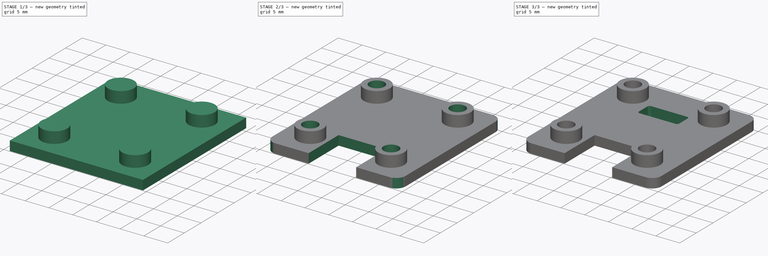
[diagram: build sequence overview — one tinted view per stage of 3, left to right]
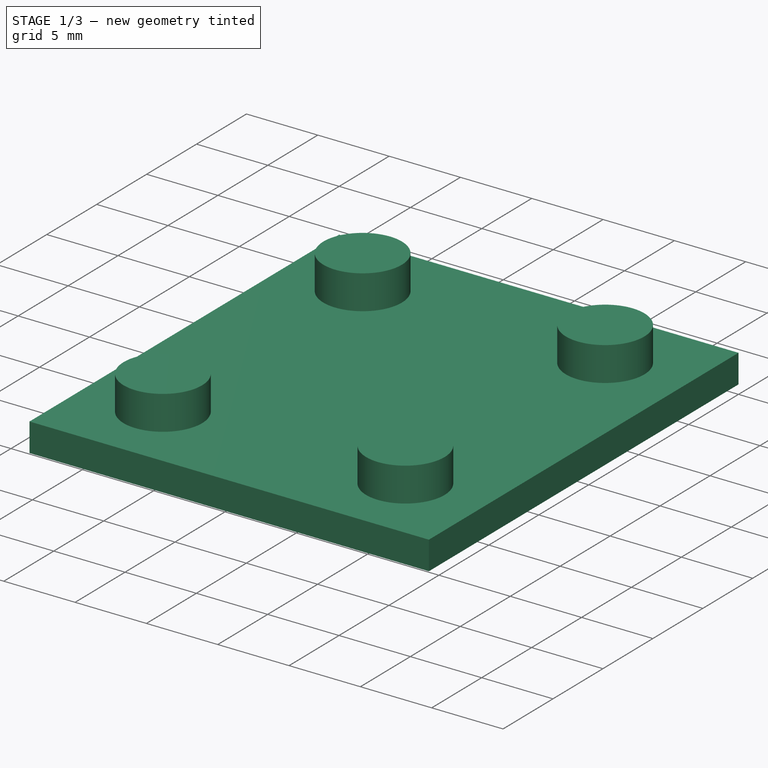
[diagram: stage 1 of 3 — iso view after this stage's code; geometry added in this stage tinted green]
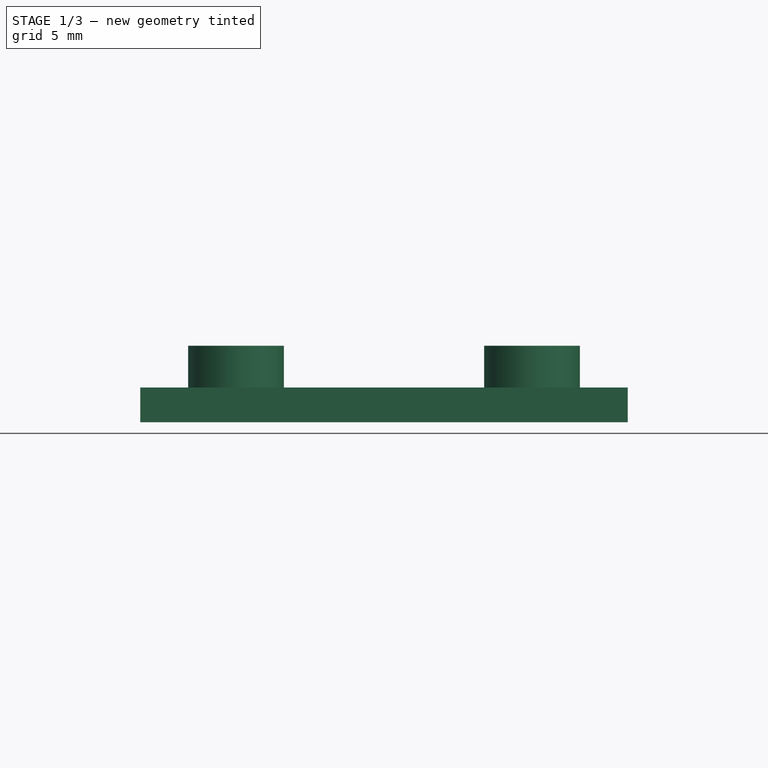
[diagram: stage 1 of 3 — front view after this stage's code; geometry added in this stage tinted green]
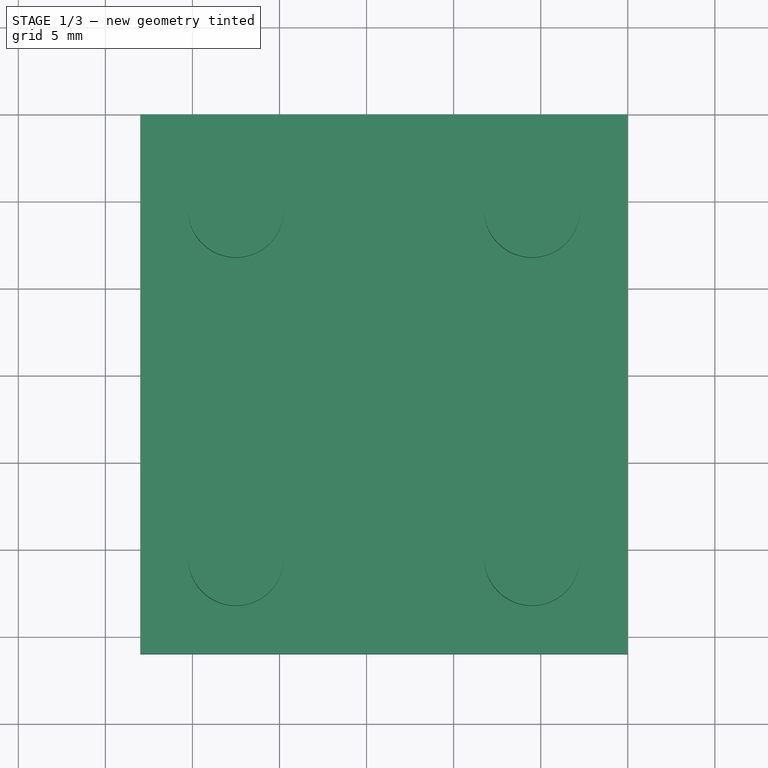
[diagram: stage 1 of 3 — top view after this stage's code; geometry added in this stage tinted green]
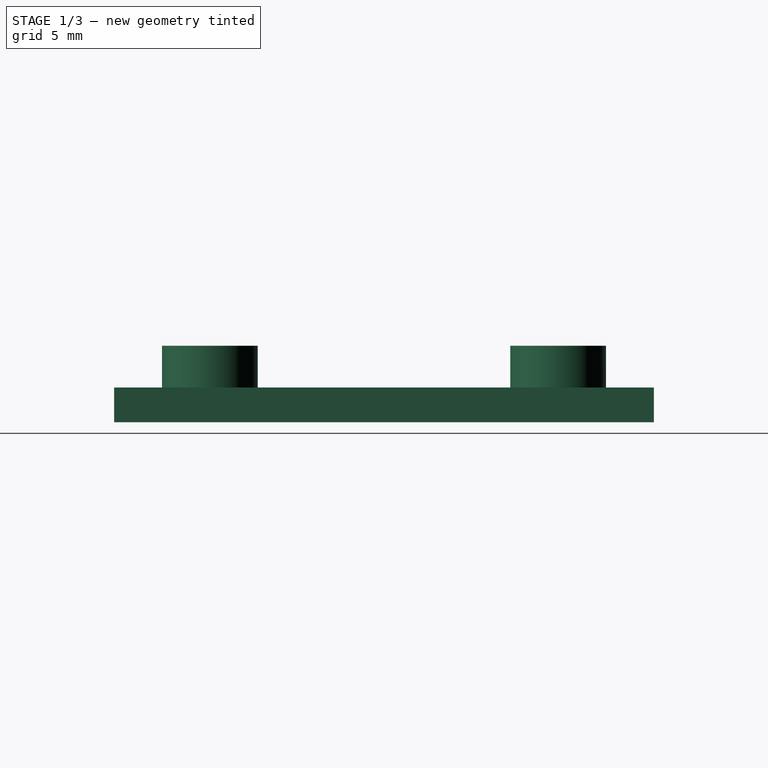
[diagram: stage 1 of 3 — right view after this stage's code; geometry added in this stage tinted green]
FCSTD DOCUMENT  (FreeCAD 1.0R39285 (Git))
Label: usb-stand-top
License: All rights reserved
LicenseURL: https://en.wikipedia.org/wiki/All_rights_reserved
objects: Sketcher::SketchObject×5, PartDesign::Pad×2, PartDesign::Pocket×2, PartDesign::Fillet×2, PartDesign::Hole×1, PartDesign::Body×1
note: 32 computed .brp shape members not serialized (recipe doc carries the construction recipe); baked Part::Feature solids carry a one-line shape summary decoded from their .brp

FEATURE [Sketcher::SketchObject] Sketch004
  ArcFitTolerance = 1e-06
  AttachmentSupport = -> [XY_Plane001]
  FullyConstrained = true
  MakeInternals = false
  MapMode = 5
  sketch-geometry (4):
    g0: LineSegment StartX=0 StartY=0 StartZ=0 EndX=-28 EndY=0 EndZ=0
    g1: LineSegment StartX=-28 StartY=0 StartZ=0 EndX=-28 EndY=-31 EndZ=0
    g2: LineSegment StartX=-28 StartY=-31 StartZ=0 EndX=0 EndY=-31 EndZ=0
    g3: LineSegment StartX=0 StartY=-31 StartZ=0 EndX=0 EndY=0 EndZ=0
  constraints (11):
    c: Coincident(g0,g1)
    c: Coincident(g1,g2)
    c: Coincident(g2,g3)
    c: Coincident(g3,g0)
    c: Horizontal(g0)
    c: Horizontal(g2)
    c: Vertical(g1)
    c: Vertical(g3)
    c: Distance(g1,g3) = 28
    c: Distance(g0,g2) = 31
    c: Coincident(g0,g-1)
FEATURE [PartDesign::Pad] Pad001
  Direction = (0,0,1)
  Length = 2
  Length2 = 10
  Profile = -> Sketch004
  ReferenceAxis = -> Sketch004 [N_Axis]
  Refine = true
  Suppressed = false
  Type = 0
FEATURE [Sketcher::SketchObject] Sketch005
  ArcFitTolerance = 1e-06
  AttachmentSupport = -> [Pad001]
  ExternalGeometry = -> [Pad001]
  FullyConstrained = true
  MakeInternals = false
  MapMode = 5
  Placement = pos=(0,0,2) rot=(0,0,1;0rad)
  sketch-geometry (4):
    g0: Circle CenterX=-22.5 CenterY=-5.5 CenterZ=0 NormalX=0 NormalY=0 NormalZ=1 AngleXU=0 Radius=2.75
    g1: Circle CenterX=-5.5 CenterY=-5.5 CenterZ=0 NormalX=0 NormalY=0 NormalZ=1 AngleXU=0 Radius=2.75
    g2: Circle CenterX=-22.5 CenterY=-25.5 CenterZ=0 NormalX=0 NormalY=0 NormalZ=1 AngleXU=0 Radius=2.75
    g3: Circle CenterX=-5.5 CenterY=-25.5 CenterZ=0 NormalX=0 NormalY=0 NormalZ=1 AngleXU=0 Radius=2.75
  constraints (12):
    c: Diameter(g0) = 5.5
    c: Diameter(g1) = 5.5
    c: Diameter(g2) = 5.5
    c: Diameter(g3) = 5.5
    c: Distance(g0,g-4) = 5.5
    c: Distance(g0,g-1) = 5.5
    c: Distance(g1,g-2) = 5.5
    c: Distance(g1,g-1) = 5.5
    c: Distance(g2,g-4) = 5.5
    c: Distance(g2,g-3) = 5.5
    c: Distance(g3,g-2) = 5.5
    c: Distance(g3,g-3) = 5.5
FEATURE [PartDesign::Pad] Pad002
  BaseFeature = -> Pad001
  Direction = (0,0,1)
  Length = 2.4
  Length2 = 10
  Profile = -> Sketch005
  ReferenceAxis = -> Sketch005 [N_Axis]
  Refine = true
  Suppressed = false
  Type = 0
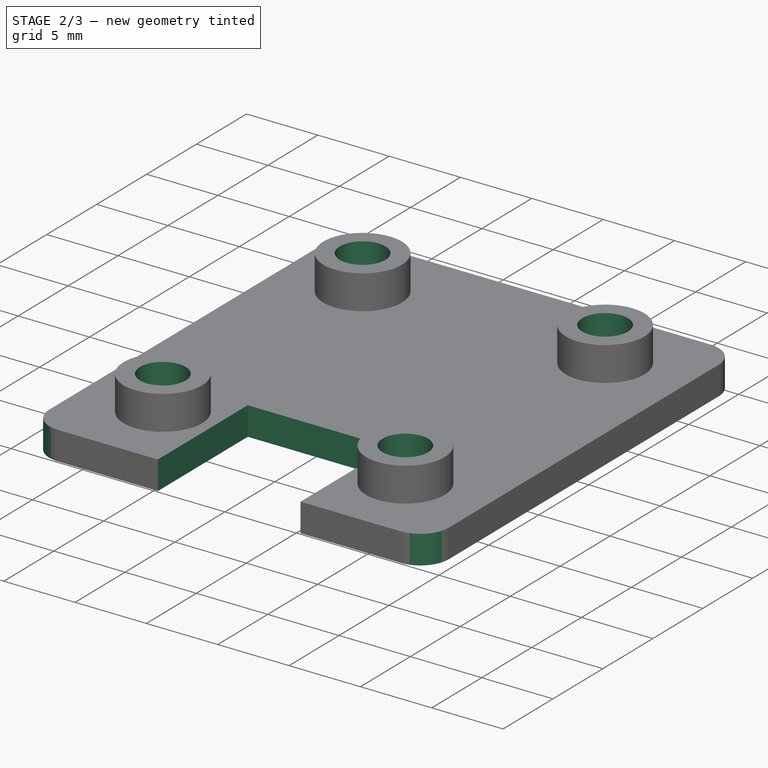
[diagram: stage 2 of 3 — iso view after this stage's code; geometry added in this stage tinted green]
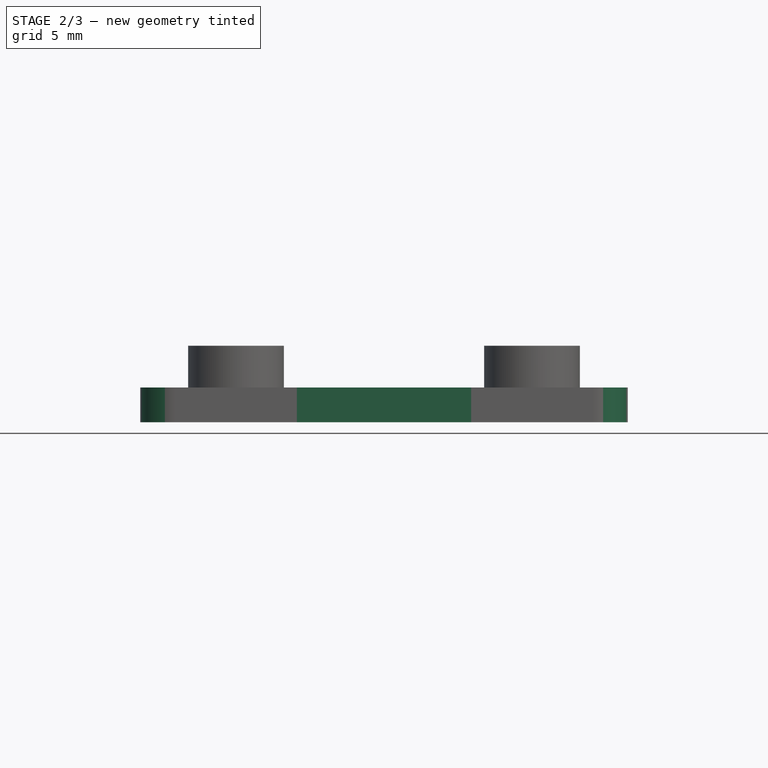
[diagram: stage 2 of 3 — front view after this stage's code; geometry added in this stage tinted green]
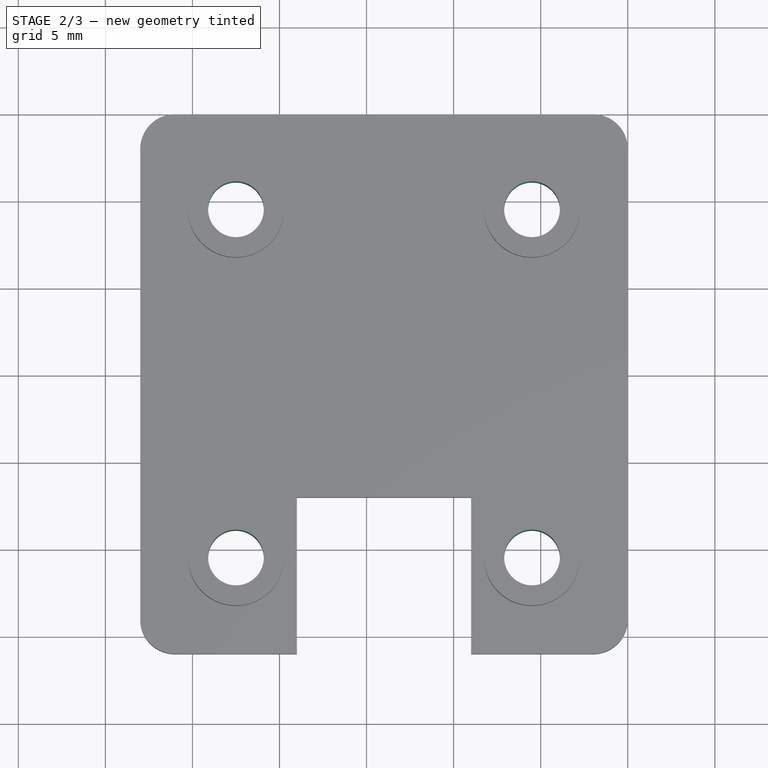
[diagram: stage 2 of 3 — top view after this stage's code; geometry added in this stage tinted green]
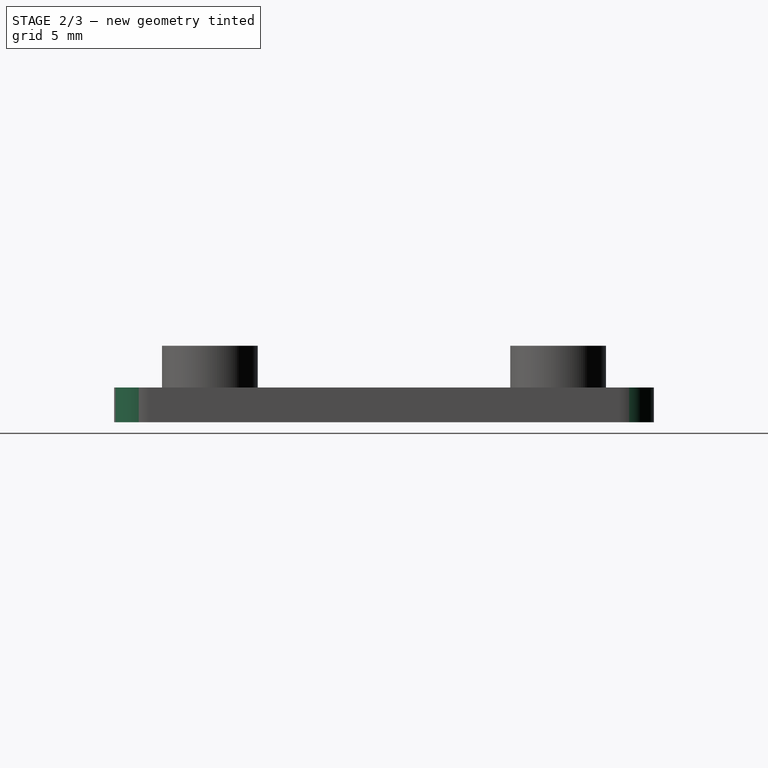
[diagram: stage 2 of 3 — right view after this stage's code; geometry added in this stage tinted green]
FEATURE [Sketcher::SketchObject] Sketch006
  ArcFitTolerance = 1e-06
  AttachmentSupport = -> [Pad002]
  ExternalGeometry = -> [Pad002]
  FullyConstrained = true
  MakeInternals = false
  MapMode = 5
  Placement = pos=(0,0,0) rot=(1,0,0;3.14159rad)
  sketch-geometry (4):
    g0: Circle CenterX=-22.5 CenterY=25.5 CenterZ=0 NormalX=0 NormalY=0 NormalZ=1 AngleXU=0 Radius=1.5
    g1: Circle CenterX=-5.5 CenterY=25.5 CenterZ=0 NormalX=0 NormalY=0 NormalZ=1 AngleXU=0 Radius=1.5
    g2: Circle CenterX=-5.5 CenterY=5.5 CenterZ=0 NormalX=0 NormalY=0 NormalZ=1 AngleXU=0 Radius=1.5
    g3: Circle CenterX=-22.5 CenterY=5.5 CenterZ=0 NormalX=0 NormalY=0 NormalZ=1 AngleXU=0 Radius=1.5
  constraints (12):
    c: Diameter(g0) = 3
    c: Diameter(g1) = 3
    c: Diameter(g2) = 3
    c: Diameter(g3) = 3
    c: Distance(g0,g-4) = 5.5
    c: Distance(g0,g-3) = 5.5
    c: Distance(g1,g-2) = 5.5
    c: Distance(g1,g-3) = 5.5
    c: Distance(g3,g-4) = 5.5
    c: Distance(g3,g-1) = 5.5
    c: Distance(g2,g-2) = 5.5
    c: DistanceY(g-1,g2) = 5.5
FEATURE [PartDesign::Hole] Hole001
  BaseFeature = -> Pad002
  CustomThreadClearance = 0
  Depth = 25
  DepthType = 0
  Diameter = 3.2
  DrillForDepth = false
  DrillPoint = 1
  DrillPointAngle = 118
  HoleCutCountersinkAngle = 90
  HoleCutCustomValues = false
  HoleCutDepth = 0
  HoleCutDiameter = 6.1
  HoleCutType = 0
  ModelThread = false
  Profile = -> Sketch006
  Refine = true
  Suppressed = false
  Tapered = false
  TaperedAngle = 90
  ThreadClass = 0
  ThreadDepth = 25
  ThreadDepthType = 0
  ThreadDirection = 0
  ThreadFit = 1
  ThreadSize = 9
  ThreadType = 1
  Threaded = false
  UseCustomThreadClearance = false
FEATURE [Sketcher::SketchObject] Sketch
  ArcFitTolerance = 1e-06
  AttachmentSupport = -> [Hole001]
  ExternalGeometry = -> [Hole001]
  FullyConstrained = true
  MakeInternals = false
  MapMode = 5
  Placement = pos=(0,0,2) rot=(0,0,1;0rad)
  sketch-geometry (4):
    g0: LineSegment StartX=-19 StartY=-31 StartZ=0 EndX=-19 EndY=-22 EndZ=0
    g1: LineSegment StartX=-19 StartY=-22 StartZ=0 EndX=-9 EndY=-22 EndZ=0
    g2: LineSegment StartX=-9 StartY=-22 StartZ=0 EndX=-9 EndY=-31 EndZ=0
    g3: LineSegment StartX=-19 StartY=-31 StartZ=0 EndX=-9 EndY=-31 EndZ=0
  constraints (12):
    c: Distance(g0) = 9
    c: Vertical(g0)
    c: PointOnObject(g0,g-4)
    c: Distance(g-3,g0) = 9
    c: Distance(g1) = 10
    c: Coincident(g1,g0)
    c: Horizontal(g1)
    c: Coincident(g2,g1)
    c: PointOnObject(g2,g-4)
    c: Vertical(g2)
    c: Coincident(g3,g0)
    c: Coincident(g3,g2)
FEATURE [PartDesign::Pocket] Pocket
  BaseFeature = -> Hole001
  Direction = (0,0,-1)
  Length = 5
  Length2 = 5
  Profile = -> Sketch
  ReferenceAxis = -> Sketch [N_Axis]
  Refine = true
  Suppressed = false
  Type = 0
FEATURE [PartDesign::Fillet] Fillet
  Base = -> Pocket [Edge1,Edge5,Edge2,Edge8]
  BaseFeature = -> Pocket
  Radius = 2
  Refine = true
  SupportTransform = false
  Suppressed = false
  UseAllEdges = false
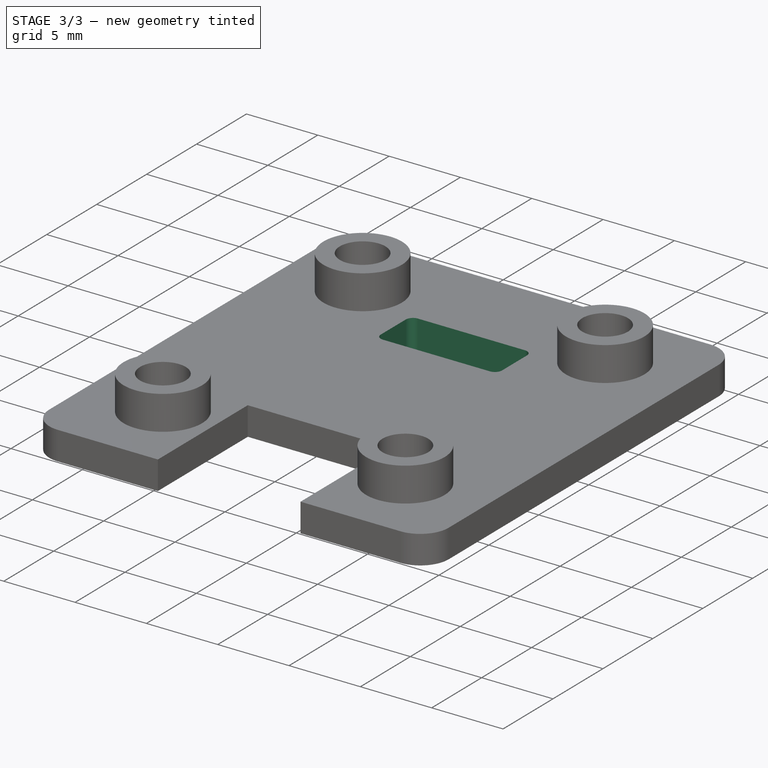
[diagram: stage 3 of 3 — iso view after this stage's code; geometry added in this stage tinted green]
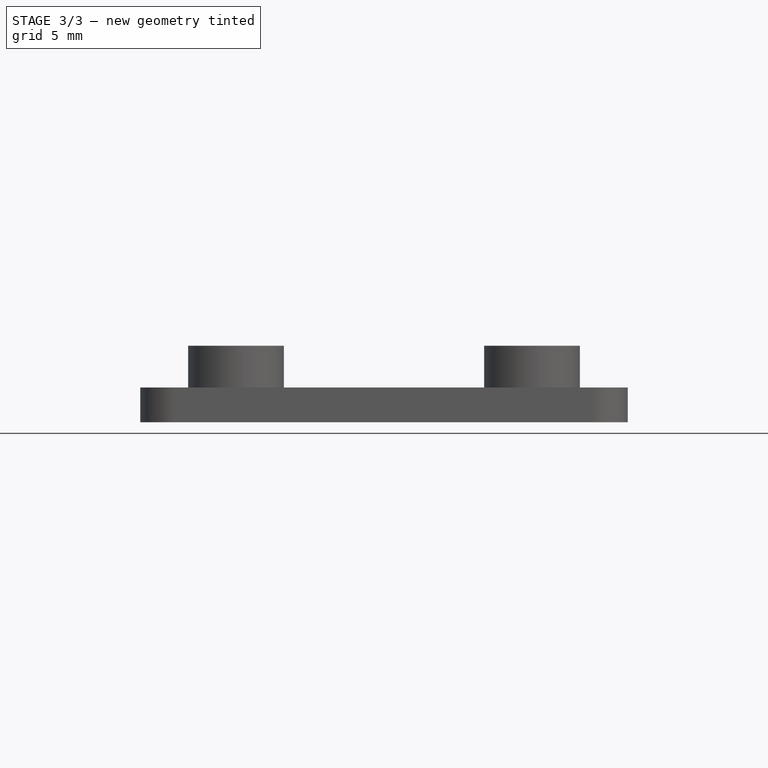
[diagram: stage 3 of 3 — front view after this stage's code; geometry added in this stage tinted green]
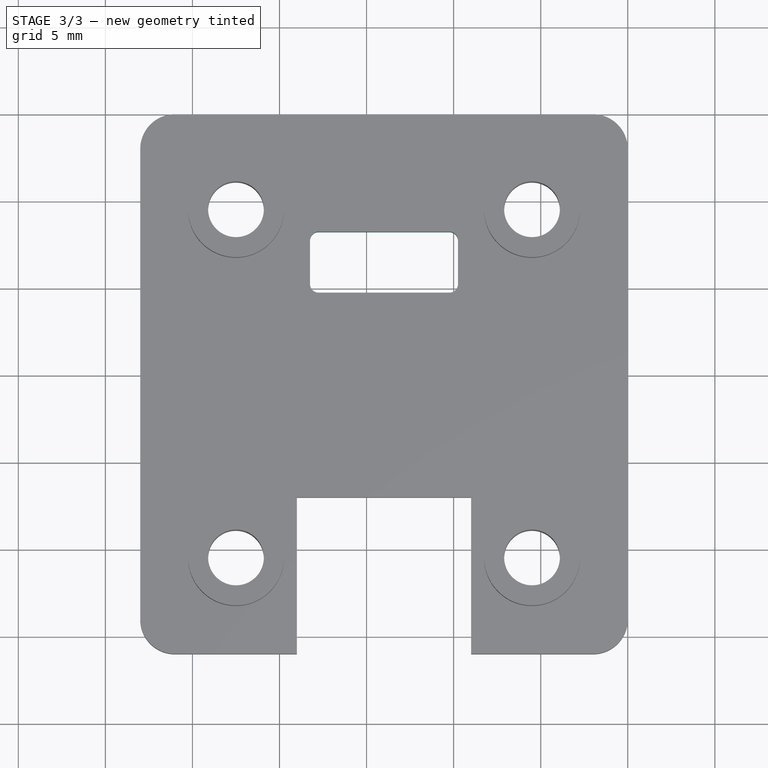
[diagram: stage 3 of 3 — top view after this stage's code; geometry added in this stage tinted green]
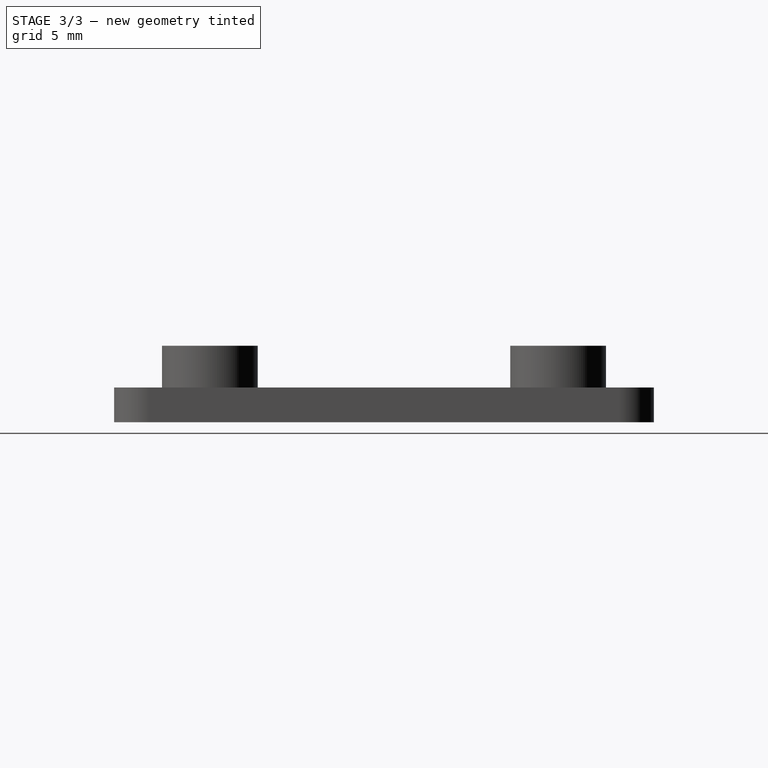
[diagram: stage 3 of 3 — right view after this stage's code; geometry added in this stage tinted green]
FEATURE [Sketcher::SketchObject] Sketch007
  ArcFitTolerance = 1e-06
  AttachmentSupport = -> [Fillet]
  FullyConstrained = true
  MakeInternals = false
  MapMode = 5
  Placement = pos=(0,0,2) rot=(0,0,1;0rad)
  sketch-geometry (4):
    g0: LineSegment StartX=-18.25 StartY=-6.75 StartZ=0 EndX=-18.25 EndY=-10.25 EndZ=0
    g1: LineSegment StartX=-18.25 StartY=-10.25 StartZ=0 EndX=-9.75 EndY=-10.25 EndZ=0
    g2: LineSegment StartX=-9.75 StartY=-10.25 StartZ=0 EndX=-9.75 EndY=-6.75 EndZ=0
    g3: LineSegment StartX=-9.75 StartY=-6.75 StartZ=0 EndX=-18.25 EndY=-6.75 EndZ=0
  constraints (12):
    c: Coincident(g0,g1)
    c: Coincident(g1,g2)
    c: Coincident(g2,g3)
    c: Coincident(g3,g0)
    c: Vertical(g0)
    c: Vertical(g2)
    c: Horizontal(g1)
    c: Horizontal(g3)
    c: Distance(g0,g2) = 8.5
    c: Distance(g1,g3) = 3.5
    c: Distance(g-2,g2) = 9.75
    c: Distance(g-1,g3) = 6.75
FEATURE [PartDesign::Pocket] Pocket001
  BaseFeature = -> Fillet
  Direction = (0,0,-1)
  Length = 5
  Length2 = 5
  Profile = -> Sketch007
  ReferenceAxis = -> Sketch007 [N_Axis]
  Refine = true
  Suppressed = false
  Type = 2
FEATURE [PartDesign::Fillet] Fillet001
  Base = -> Pocket001 [Edge61,Edge59,Edge60,Edge62]
  BaseFeature = -> Pocket001
  Radius = 0.5
  Refine = true
  SupportTransform = false
  Suppressed = false
  UseAllEdges = false
FEATURE [PartDesign::Body] Body001  label="몸통001"
  AllowCompound = false
  Group = -> [Sketch004,Pad001,Sketch005,Pad002,Sketch006,Hole001,Sketch,Pocket,Fillet,Sketch007,Pocket001,Fillet001]
  Origin = -> Origin001
  Tip = -> Fillet001
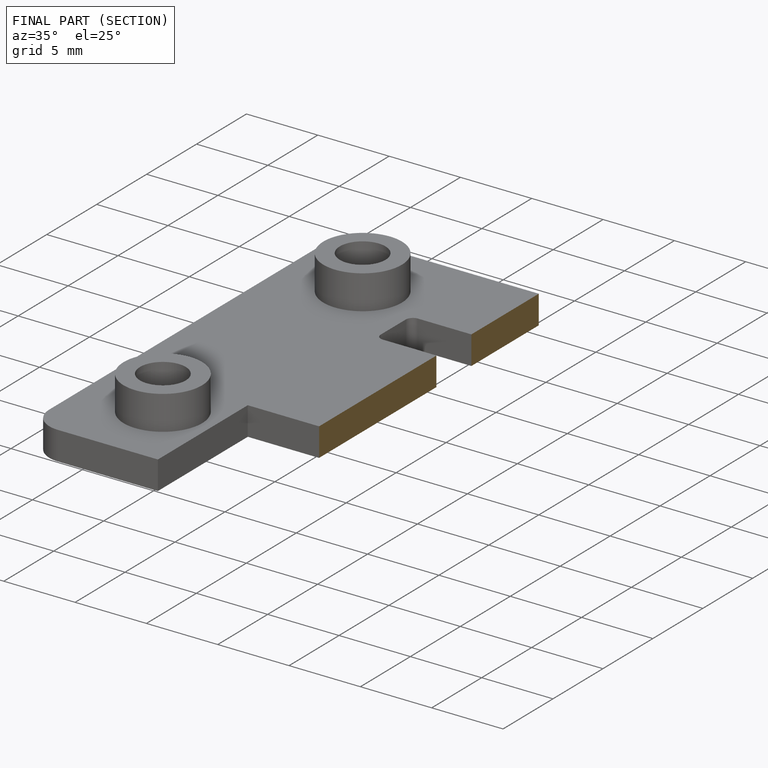
[diagram: finished part — half-section view (interior)]
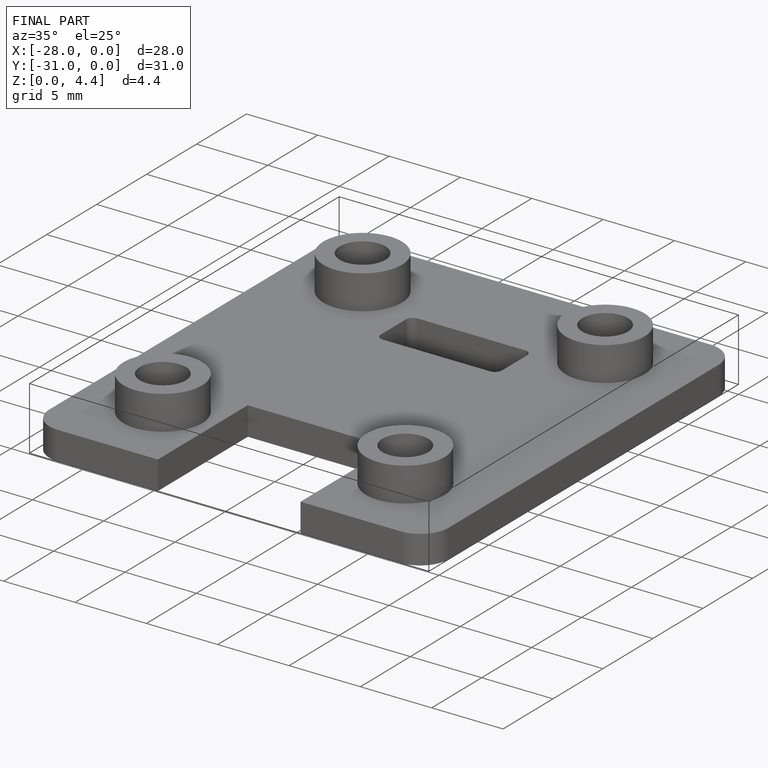
[diagram: finished part — iso view with bounding-box wireframe]
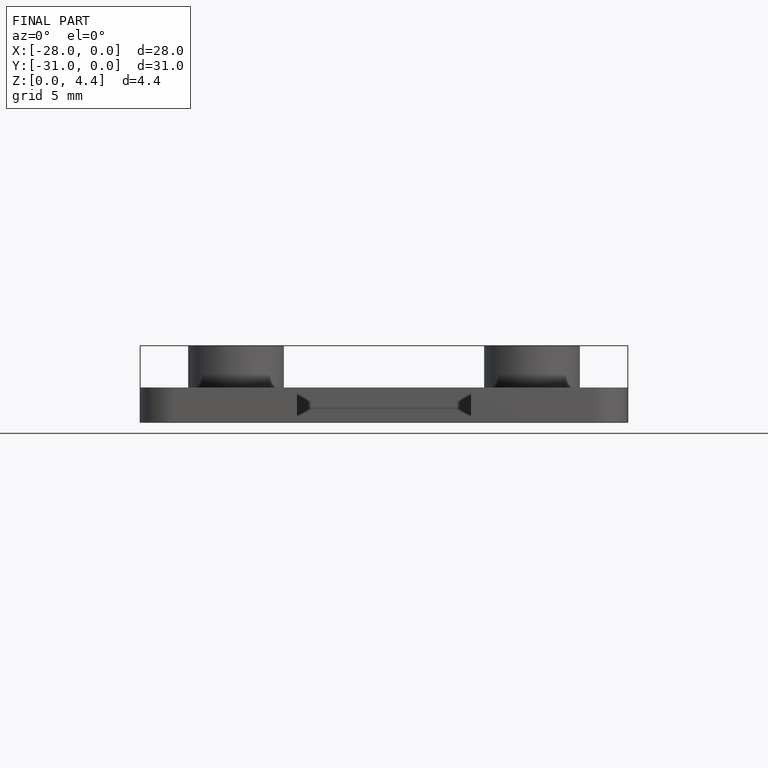
[diagram: finished part — front view with bounding-box wireframe]
